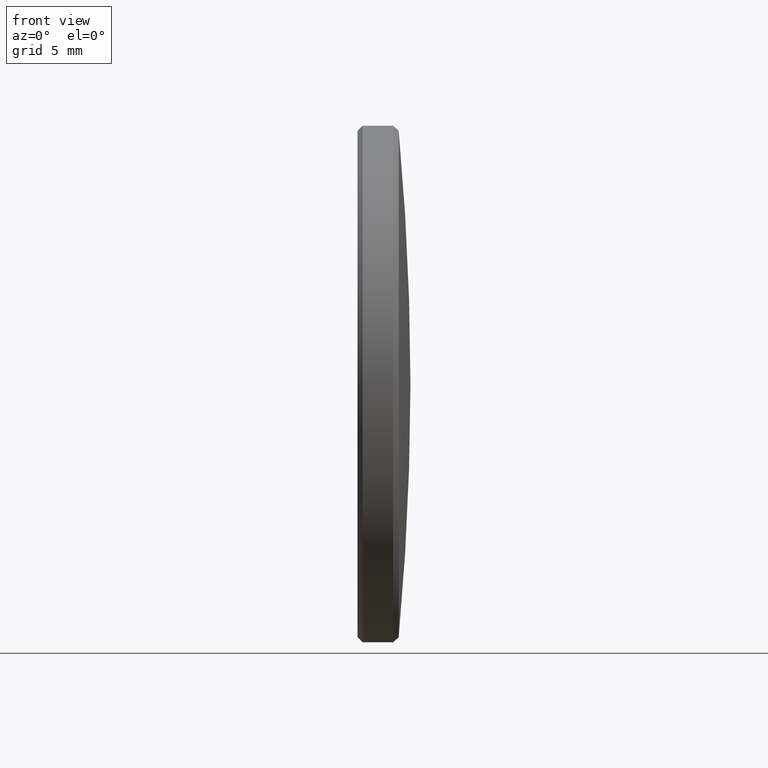
[diagram: clean part render]
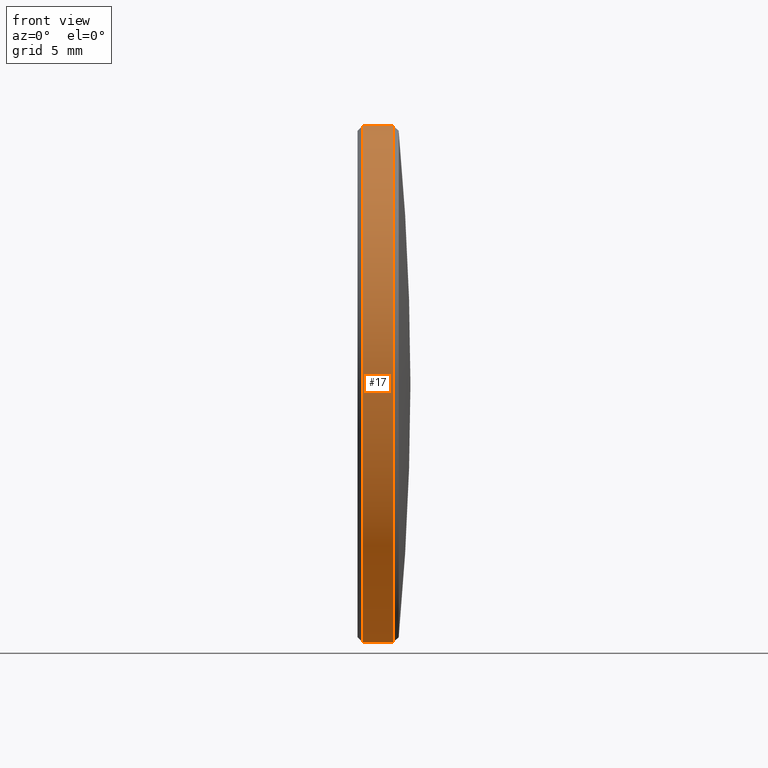
[diagram: same view with one face highlighted and labeled with its STEP entity id]
A machine part, front view. The second image highlights one B-rep face of the part: STEP entity #17.
In plain terms, the highlighted cylindrical surface (partial cylindrical patch) has radius 12.7 mm, axis along (-1, -0, -0).
Its self-contained STEP definition (entity closure, byte-faithful):
#1 = CIRCLE ( 'NONE', #140, 12.70000000000000100 ) ;
#13 = DIRECTION ( 'NONE',  ( 0.0000000000000000000, 0.0000000000000000000, -1.000000000000000000 ) ) ;
#17 = ADVANCED_FACE ( 'NONE', ( #283 ), #135, .T. ) ;
#19 = EDGE_CURVE ( 'NONE', #83, #286, #1, .T. ) ;
#32 = CARTESIAN_POINT ( 'NONE',  ( -1.049999999999999800, 0.0000000000000000000, 12.70000000000000100 ) ) ;
#33 = VECTOR ( 'NONE', #110, 1000.000000000000000 ) ;
#42 = CARTESIAN_POINT ( 'NONE',  ( -1.300000000000000000, 1.555301434917138600E-015, -12.70000000000000100 ) ) ;
#47 = CARTESIAN_POINT ( 'NONE',  ( -1.300000000000000000, 0.0000000000000000000, 0.0000000000000000000 ) ) ;
#48 = ORIENTED_EDGE ( 'NONE', *, *, #194, .F. ) ;
#83 = VERTEX_POINT ( 'NONE', #32 ) ;
#84 = LINE ( 'NONE', #42, #33 ) ;
#85 = VECTOR ( 'NONE', #171, 1000.000000000000000 ) ;
#88 = EDGE_CURVE ( 'NONE', #131, #167, #221, .T. ) ;
#93 = ORIENTED_EDGE ( 'NONE', *, *, #88, .T. ) ;
#110 = DIRECTION ( 'NONE',  ( -1.000000000000000000, -0.0000000000000000000, -0.0000000000000000000 ) ) ;
#113 = DIRECTION ( 'NONE',  ( -1.000000000000000000, -0.0000000000000000000, -0.0000000000000000000 ) ) ;
#128 = AXIS2_PLACEMENT_3D ( 'NONE', #47, #113, #166 ) ;
#131 = VERTEX_POINT ( 'NONE', #142 ) ;
#135 = CYLINDRICAL_SURFACE ( 'NONE', #128, 12.70000000000000100 ) ;
#140 = AXIS2_PLACEMENT_3D ( 'NONE', #239, #234, #13 ) ;
#142 = CARTESIAN_POINT ( 'NONE',  ( 0.4500000000353665500, 1.555301434917138600E-015, -12.70000000000000100 ) ) ;
#144 = CARTESIAN_POINT ( 'NONE',  ( -1.049999999999999800, 1.555301434917138600E-015, -12.70000000000000100 ) ) ;
#155 = DIRECTION ( 'NONE',  ( -1.000000000000000000, -0.0000000000000000000, -0.0000000000000000000 ) ) ;
#166 = DIRECTION ( 'NONE',  ( 0.0000000000000000000, 0.0000000000000000000, 1.000000000000000000 ) ) ;
#167 = VERTEX_POINT ( 'NONE', #282 ) ;
#168 = AXIS2_PLACEMENT_3D ( 'NONE', #186, #155, #181 ) ;
#171 = DIRECTION ( 'NONE',  ( -1.000000000000000000, -0.0000000000000000000, -0.0000000000000000000 ) ) ;
#181 = DIRECTION ( 'NONE',  ( 0.0000000000000000000, 0.0000000000000000000, 1.000000000000000000 ) ) ;
#185 = EDGE_CURVE ( 'NONE', #167, #83, #248, .T. ) ;
#186 = CARTESIAN_POINT ( 'NONE',  ( 0.4500000000353665500, 0.0000000000000000000, 0.0000000000000000000 ) ) ;
#194 = EDGE_CURVE ( 'NONE', #131, #286, #84, .T. ) ;
#200 = ORIENTED_EDGE ( 'NONE', *, *, #19, .T. ) ;
#210 = CARTESIAN_POINT ( 'NONE',  ( -1.300000000000000000, 0.0000000000000000000, 12.70000000000000100 ) ) ;
#212 = EDGE_LOOP ( 'NONE', ( #48, #93, #236, #200 ) ) ;
#221 = CIRCLE ( 'NONE', #168, 12.70000000000000100 ) ;
#234 = DIRECTION ( 'NONE',  ( 1.000000000000000000, 0.0000000000000000000, 0.0000000000000000000 ) ) ;
#236 = ORIENTED_EDGE ( 'NONE', *, *, #185, .T. ) ;
#239 = CARTESIAN_POINT ( 'NONE',  ( -1.049999999999999800, 0.0000000000000000000, 0.0000000000000000000 ) ) ;
#248 = LINE ( 'NONE', #210, #85 ) ;
#282 = CARTESIAN_POINT ( 'NONE',  ( 0.4500000000353665500, 0.0000000000000000000, 12.70000000000000100 ) ) ;
#283 = FACE_OUTER_BOUND ( 'NONE', #212, .T. ) ;
#286 = VERTEX_POINT ( 'NONE', #144 ) ;